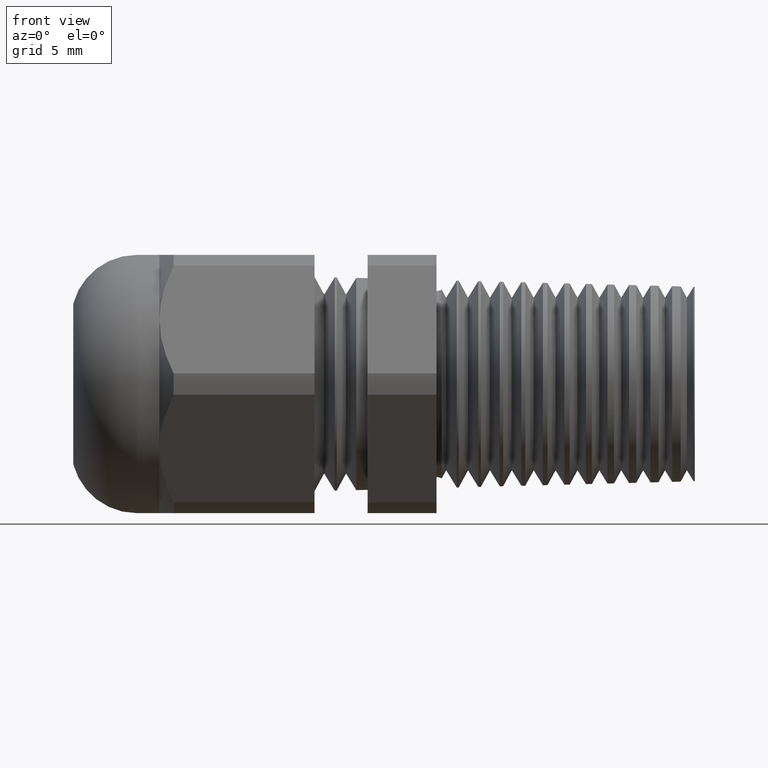
[diagram: clean part render]
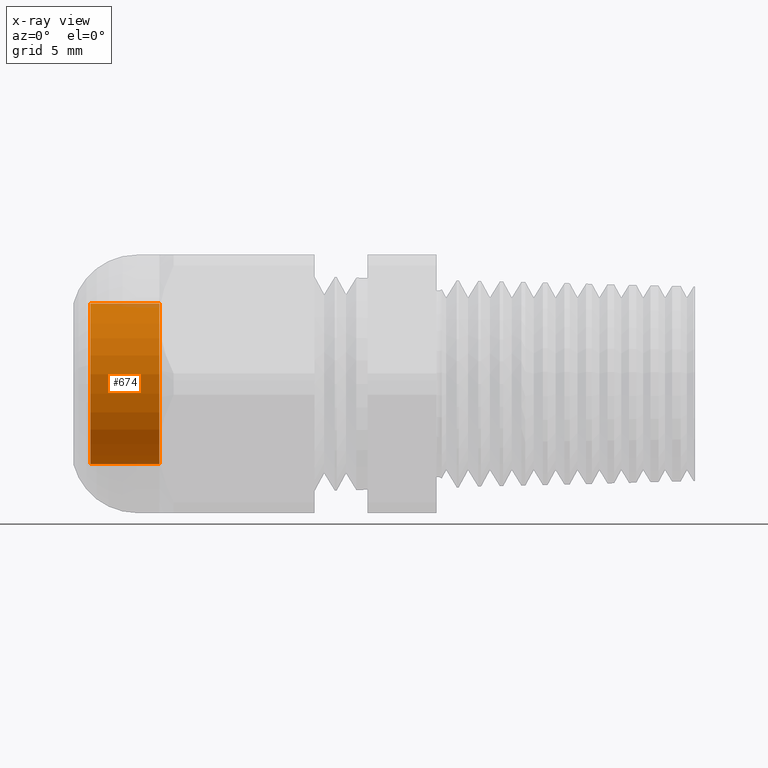
[diagram: x-ray — body ghosted, one internal face saturated and labeled with its STEP entity id]
A machine part, front view, then the same camera in x-ray: the body is ghosted and one INTERNAL B-rep face — a face not visible from any outside direction — is saturated and labeled: STEP entity #674.
In plain terms, the highlighted cylindrical surface (partial cylindrical patch) has radius 4.6673 mm, axis along (1, 0, 0).
Its self-contained STEP definition (entity closure, byte-faithful):
#674 = ADVANCED_FACE ( 'NONE', ( #2325 ), #2324, .T. ) ;
#675 = EDGE_LOOP ( 'NONE', ( #676, #731, #733, #734 ) ) ;
#676 = ORIENTED_EDGE ( 'NONE', *, *, #684, .F. ) ;
#684 = EDGE_CURVE ( 'NONE', #704, #685, #2369, .T. ) ;
#685 = VERTEX_POINT ( 'NONE', #2365 ) ;
#688 = VERTEX_POINT ( 'NONE', #2359 ) ;
#704 = VERTEX_POINT ( 'NONE', #2393 ) ;
#706 = VERTEX_POINT ( 'NONE', #2392 ) ;
#731 = ORIENTED_EDGE ( 'NONE', *, *, #732, .T. ) ;
#732 = EDGE_CURVE ( 'NONE', #704, #706, #2432, .T. ) ;
#733 = ORIENTED_EDGE ( 'NONE', *, *, #744, .T. ) ;
#734 = ORIENTED_EDGE ( 'NONE', *, *, #748, .F. ) ;
#744 = EDGE_CURVE ( 'NONE', #706, #688, #2474, .T. ) ;
#748 = EDGE_CURVE ( 'NONE', #685, #688, #2463, .T. ) ;
#2320 = DIRECTION ( 'NONE',  ( 0.0000000000000000000, 0.0000000000000000000, -1.000000000000000000 ) ) ;
#2321 = DIRECTION ( 'NONE',  ( 1.000000000000000000, 0.0000000000000000000, 0.0000000000000000000 ) ) ;
#2322 = AXIS2_PLACEMENT_3D ( 'NONE', #2329, #2321, #2320 ) ;
#2324 = CYLINDRICAL_SURFACE ( 'NONE', #2322, 0.1837500000000000500 ) ;
#2325 = FACE_OUTER_BOUND ( 'NONE', #675, .T. ) ;
#2329 = CARTESIAN_POINT ( 'NONE',  ( 0.0000000000000000000, 0.0000000000000000000, 0.0000000000000000000 ) ) ;
#2359 = CARTESIAN_POINT ( 'NONE',  ( -0.9431496062992125200, 0.0000000000000000000, -0.1837500000000000500 ) ) ;
#2365 = CARTESIAN_POINT ( 'NONE',  ( -0.9431496062992125200, 2.250288493433262100E-017, 0.1837500000000000500 ) ) ;
#2366 = DIRECTION ( 'NONE',  ( 1.000000000000000000, 0.0000000000000000000, 0.0000000000000000000 ) ) ;
#2367 = VECTOR ( 'NONE', #2366, 39.37007874015748100 ) ;
#2368 = CARTESIAN_POINT ( 'NONE',  ( 0.0000000000000000000, 2.250288493433262100E-017, 0.1837500000000000500 ) ) ;
#2369 = LINE ( 'NONE', #2368, #2367 ) ;
#2392 = CARTESIAN_POINT ( 'NONE',  ( -1.101000000000000000, 0.0000000000000000000, -0.1837500000000000500 ) ) ;
#2393 = CARTESIAN_POINT ( 'NONE',  ( -1.101000000000000000, 2.250288493433262100E-017, 0.1837500000000000500 ) ) ;
#2424 = DIRECTION ( 'NONE',  ( 0.0000000000000000000, 0.0000000000000000000, -1.000000000000000000 ) ) ;
#2425 = DIRECTION ( 'NONE',  ( 1.000000000000000000, 0.0000000000000000000, 0.0000000000000000000 ) ) ;
#2426 = CARTESIAN_POINT ( 'NONE',  ( -1.101000000000000000, 0.0000000000000000000, 0.0000000000000000000 ) ) ;
#2427 = AXIS2_PLACEMENT_3D ( 'NONE', #2426, #2425, #2424 ) ;
#2432 = CIRCLE ( 'NONE', #2427, 0.1837500000000000500 ) ;
#2459 = DIRECTION ( 'NONE',  ( 0.0000000000000000000, 0.0000000000000000000, -1.000000000000000000 ) ) ;
#2460 = DIRECTION ( 'NONE',  ( 1.000000000000000000, 0.0000000000000000000, 0.0000000000000000000 ) ) ;
#2461 = CARTESIAN_POINT ( 'NONE',  ( -0.9431496062992125200, 0.0000000000000000000, 0.0000000000000000000 ) ) ;
#2462 = AXIS2_PLACEMENT_3D ( 'NONE', #2461, #2460, #2459 ) ;
#2463 = CIRCLE ( 'NONE', #2462, 0.1837500000000000500 ) ;
#2471 = DIRECTION ( 'NONE',  ( 1.000000000000000000, 0.0000000000000000000, 0.0000000000000000000 ) ) ;
#2472 = VECTOR ( 'NONE', #2471, 39.37007874015748100 ) ;
#2473 = CARTESIAN_POINT ( 'NONE',  ( 0.0000000000000000000, 0.0000000000000000000, -0.1837500000000000500 ) ) ;
#2474 = LINE ( 'NONE', #2473, #2472 ) ;